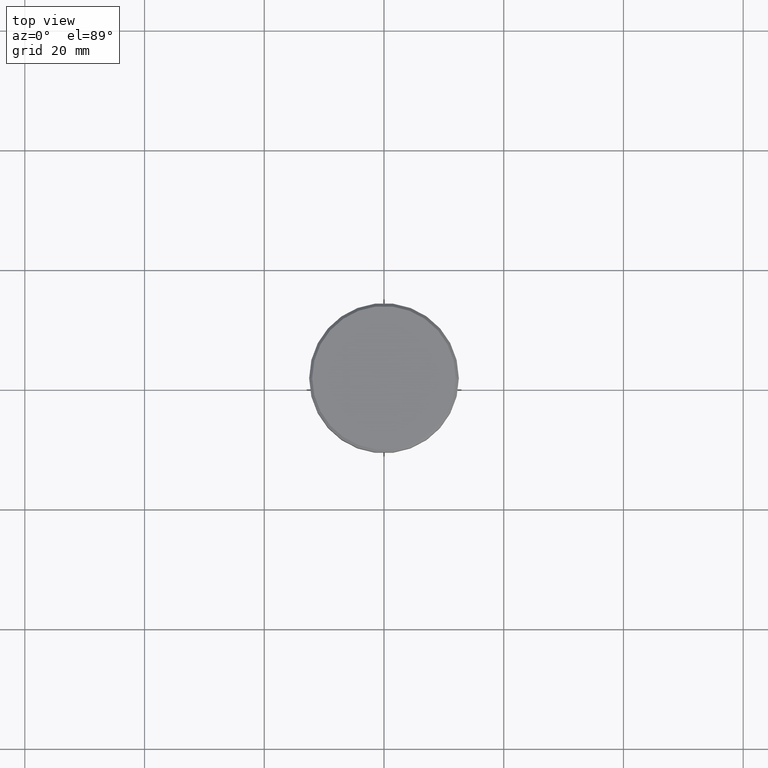
[diagram: clean part render]
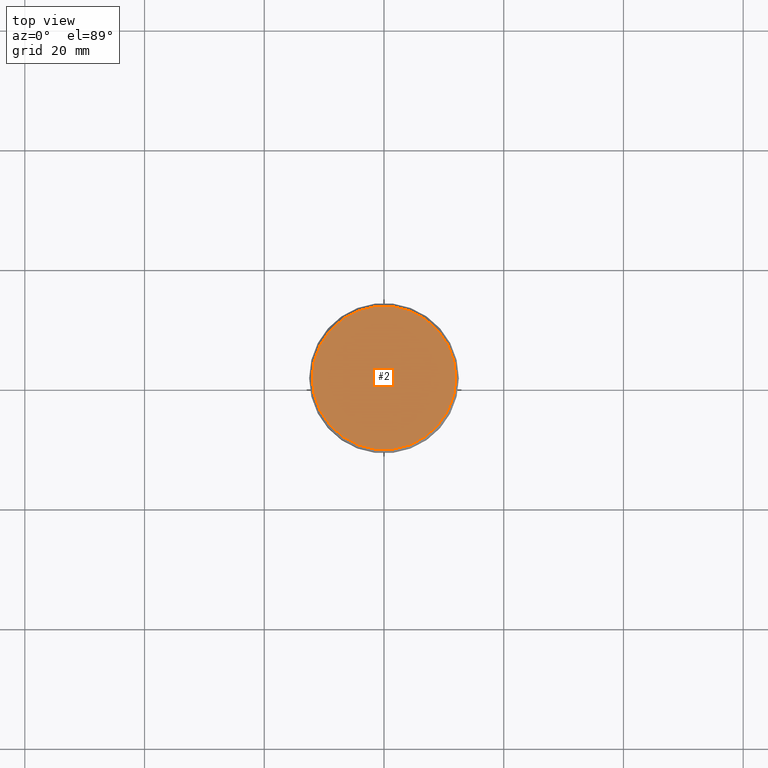
[diagram: same view with one face highlighted and labeled with its STEP entity id]
A machine part, top view. The second image highlights one B-rep face of the part: STEP entity #2.
In plain terms, the highlighted planar face has unit normal (0, -0, 1).
Its self-contained STEP definition (entity closure, byte-faithful):
#2 = ADVANCED_FACE ( 'NONE', ( #632 ), #535, .T. ) ;
#111 = AXIS2_PLACEMENT_3D ( 'NONE', #729, #297, #820 ) ;
#192 = EDGE_CURVE ( 'NONE', #798, #309, #1137, .T. ) ;
#230 = ORIENTED_EDGE ( 'NONE', *, *, #959, .T. ) ;
#294 = AXIS2_PLACEMENT_3D ( 'NONE', #841, #779, #1050 ) ;
#297 = DIRECTION ( 'NONE',  ( -0.000000000000000000, -0.000000000000000000, 1.000000000000000000 ) ) ;
#309 = VERTEX_POINT ( 'NONE', #683 ) ;
#453 = DIRECTION ( 'NONE',  ( 0.000000000000000000, -0.000000000000000000, 1.000000000000000000 ) ) ;
#535 = PLANE ( 'NONE',  #985 ) ;
#541 = DIRECTION ( 'NONE',  ( 1.000000000000000000, 0.000000000000000000, 0.000000000000000000 ) ) ;
#632 = FACE_OUTER_BOUND ( 'NONE', #1121, .T. ) ;
#683 = CARTESIAN_POINT ( 'NONE',  ( 12.00000000000003908, 1.500192328955510101E-15, 0.000000000000000000 ) ) ;
#711 = CIRCLE ( 'NONE', #111, 12.00000000000003908 ) ;
#729 = CARTESIAN_POINT ( 'NONE',  ( 0.000000000000000000, 0.000000000000000000, 0.000000000000000000 ) ) ;
#779 = DIRECTION ( 'NONE',  ( -0.000000000000000000, -0.000000000000000000, 1.000000000000000000 ) ) ;
#798 = VERTEX_POINT ( 'NONE', #912 ) ;
#820 = DIRECTION ( 'NONE',  ( 1.000000000000000000, 0.000000000000000000, 0.000000000000000000 ) ) ;
#841 = CARTESIAN_POINT ( 'NONE',  ( 0.000000000000000000, 0.000000000000000000, 0.000000000000000000 ) ) ;
#895 = ORIENTED_EDGE ( 'NONE', *, *, #192, .T. ) ;
#908 = CARTESIAN_POINT ( 'NONE',  ( 0.000000000000000000, 0.000000000000000000, 0.000000000000000000 ) ) ;
#912 = CARTESIAN_POINT ( 'NONE',  ( -12.00000000000003908, 0.000000000000000000, 0.000000000000000000 ) ) ;
#959 = EDGE_CURVE ( 'NONE', #309, #798, #711, .T. ) ;
#985 = AXIS2_PLACEMENT_3D ( 'NONE', #908, #453, #541 ) ;
#1050 = DIRECTION ( 'NONE',  ( 1.000000000000000000, 0.000000000000000000, 0.000000000000000000 ) ) ;
#1121 = EDGE_LOOP ( 'NONE', ( #895, #230 ) ) ;
#1137 = CIRCLE ( 'NONE', #294, 12.00000000000003908 ) ;